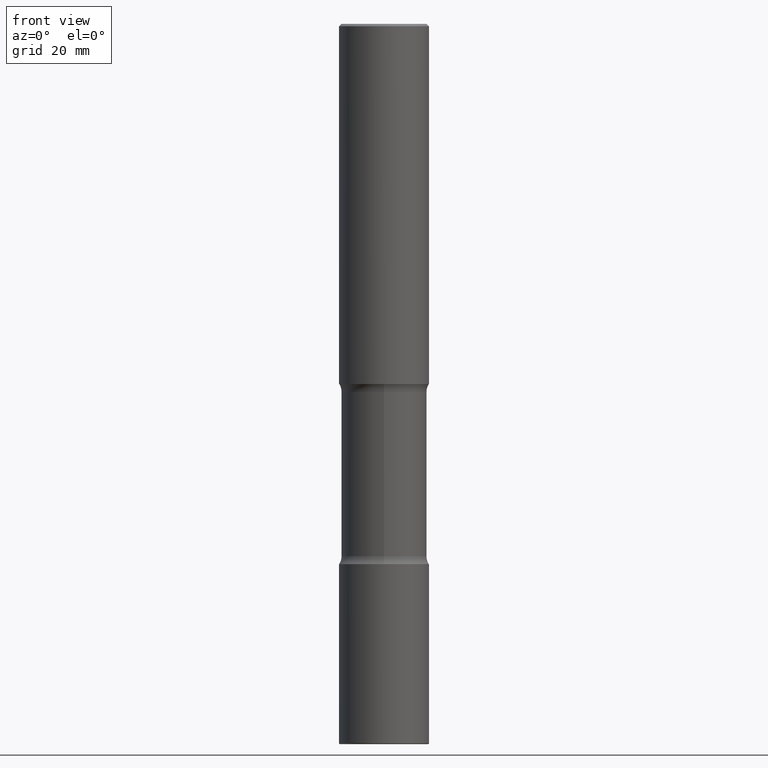
[diagram: clean part render]
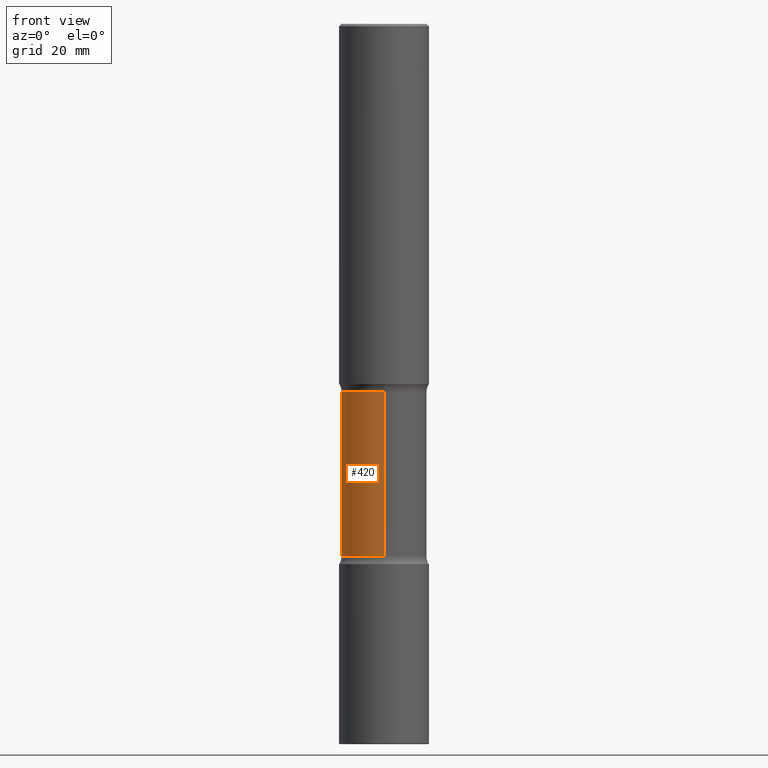
[diagram: same view with one face highlighted and labeled with its STEP entity id]
A machine part, front view. The second image highlights one B-rep face of the part: STEP entity #420.
In plain terms, the highlighted cylindrical surface (partial cylindrical patch) has radius 9.0488 mm, axis along (0, -0, -1).
Its self-contained STEP definition (entity closure, byte-faithful):
#14 = DIRECTION ( 'NONE',  ( 2.508247471065963170E-29, -3.401578717594097873E-15, -1.000000000000000000 ) ) ;
#63 = ORIENTED_EDGE ( 'NONE', *, *, #489, .T. ) ;
#72 = ORIENTED_EDGE ( 'NONE', *, *, #98, .F. ) ;
#85 = CARTESIAN_POINT ( 'NONE',  ( -2.508369580435107128E-15, -0.3562500000000154987, -4.434152164044668609 ) ) ;
#90 = EDGE_CURVE ( 'NONE', #408, #445, #366, .T. ) ;
#91 = CARTESIAN_POINT ( 'NONE',  ( 7.407401089244291879E-29, -1.083328454578828421E-14, -3.065847835955329614 ) ) ;
#97 = AXIS2_PLACEMENT_3D ( 'NONE', #220, #123, #255 ) ;
#98 = EDGE_CURVE ( 'NONE', #494, #505, #291, .T. ) ;
#123 = DIRECTION ( 'NONE',  ( 2.508247471065963170E-29, -3.401578717594097873E-15, -1.000000000000000000 ) ) ;
#151 = EDGE_CURVE ( 'NONE', #505, #445, #520, .T. ) ;
#161 = CARTESIAN_POINT ( 'NONE',  ( -2.444052411705960129E-15, -0.3562500000000208278, -5.999999999999998224 ) ) ;
#189 = CARTESIAN_POINT ( 'NONE',  ( 2.487680453925840195E-15, 0.3562499999999844680, -4.434152164044670386 ) ) ;
#218 = ORIENTED_EDGE ( 'NONE', *, *, #90, .T. ) ;
#220 = CARTESIAN_POINT ( 'NONE',  ( 1.476698083443205790E-28, -2.081403410118529621E-14, -5.999999999999999112 ) ) ;
#226 = VECTOR ( 'NONE', #498, 39.37007874015748143 ) ;
#255 = DIRECTION ( 'NONE',  ( 6.982962677686265133E-15, 1.000000000000000000, -3.067338098149347905E-15 ) ) ;
#286 = CARTESIAN_POINT ( 'NONE',  ( 1.083944695982298980E-28, -1.548767942740887449E-14, -4.434152164044669497 ) ) ;
#291 = LINE ( 'NONE', #161, #443 ) ;
#307 = ORIENTED_EDGE ( 'NONE', *, *, #151, .F. ) ;
#324 = DIRECTION ( 'NONE',  ( 6.982962677686265133E-15, 1.000000000000000000, -3.067338098149347905E-15 ) ) ;
#331 = EDGE_LOOP ( 'NONE', ( #72, #63, #218, #307 ) ) ;
#338 = FACE_OUTER_BOUND ( 'NONE', #331, .T. ) ;
#343 = CARTESIAN_POINT ( 'NONE',  ( 2.487680453925806274E-15, 0.3562499999999891309, -3.065847835955330503 ) ) ;
#366 = LINE ( 'NONE', #532, #226 ) ;
#408 = VERTEX_POINT ( 'NONE', #343 ) ;
#420 = ADVANCED_FACE ( 'NONE', ( #338 ), #504, .T. ) ;
#443 = VECTOR ( 'NONE', #460, 39.37007874015748143 ) ;
#445 = VERTEX_POINT ( 'NONE', #189 ) ;
#460 = DIRECTION ( 'NONE',  ( 2.508247471065963170E-29, -3.401578717594097873E-15, -1.000000000000000000 ) ) ;
#481 = DIRECTION ( 'NONE',  ( 6.982962677686265133E-15, 1.000000000000000000, -3.067338098149347905E-15 ) ) ;
#485 = AXIS2_PLACEMENT_3D ( 'NONE', #91, #522, #481 ) ;
#489 = EDGE_CURVE ( 'NONE', #494, #408, #492, .T. ) ;
#492 = CIRCLE ( 'NONE', #485, 0.3562500000000000111 ) ;
#494 = VERTEX_POINT ( 'NONE', #557 ) ;
#498 = DIRECTION ( 'NONE',  ( 2.508247471065963170E-29, -3.401578717594097873E-15, -1.000000000000000000 ) ) ;
#504 = CYLINDRICAL_SURFACE ( 'NONE', #97, 0.3562500000000000111 ) ;
#505 = VERTEX_POINT ( 'NONE', #85 ) ;
#520 = CIRCLE ( 'NONE', #531, 0.3562500000000000111 ) ;
#522 = DIRECTION ( 'NONE',  ( 2.508247471065963170E-29, -3.401578717594097873E-15, -1.000000000000000000 ) ) ;
#531 = AXIS2_PLACEMENT_3D ( 'NONE', #286, #14, #324 ) ;
#532 = CARTESIAN_POINT ( 'NONE',  ( 2.487680453925879638E-15, 0.3562499999999791389, -6.000000000000000888 ) ) ;
#557 = CARTESIAN_POINT ( 'NONE',  ( -2.508369580435144205E-15, -0.3562500000000108358, -3.065847835955328282 ) ) ;